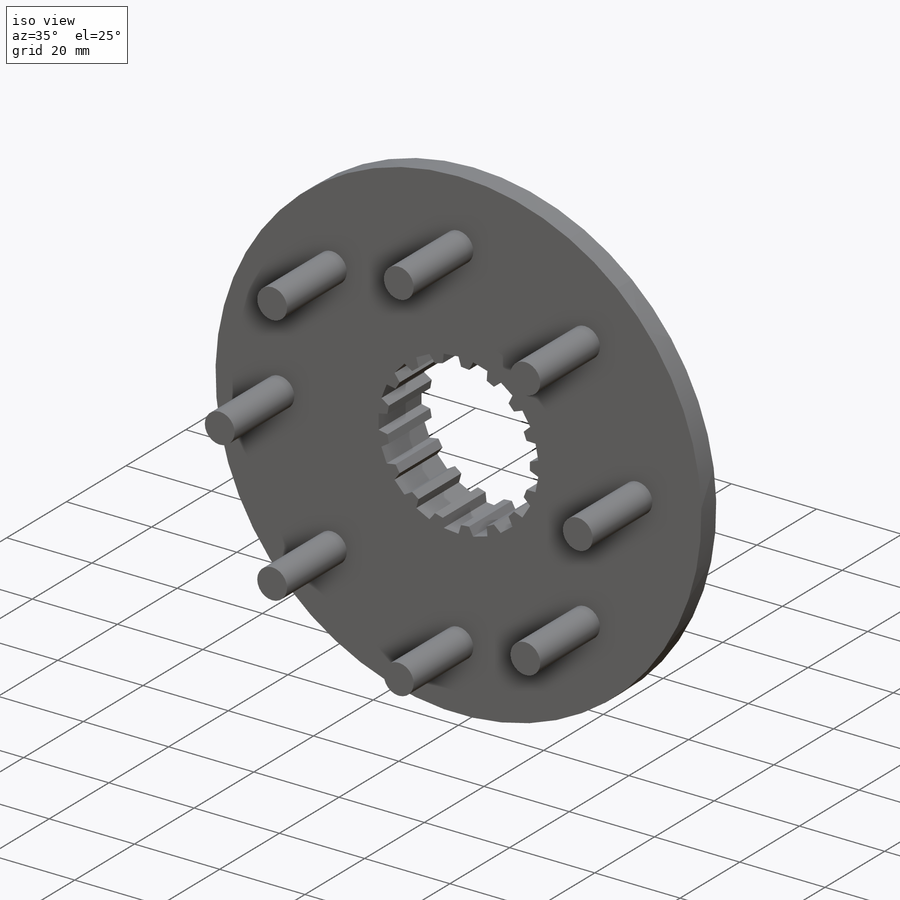
[diagram: iso view]
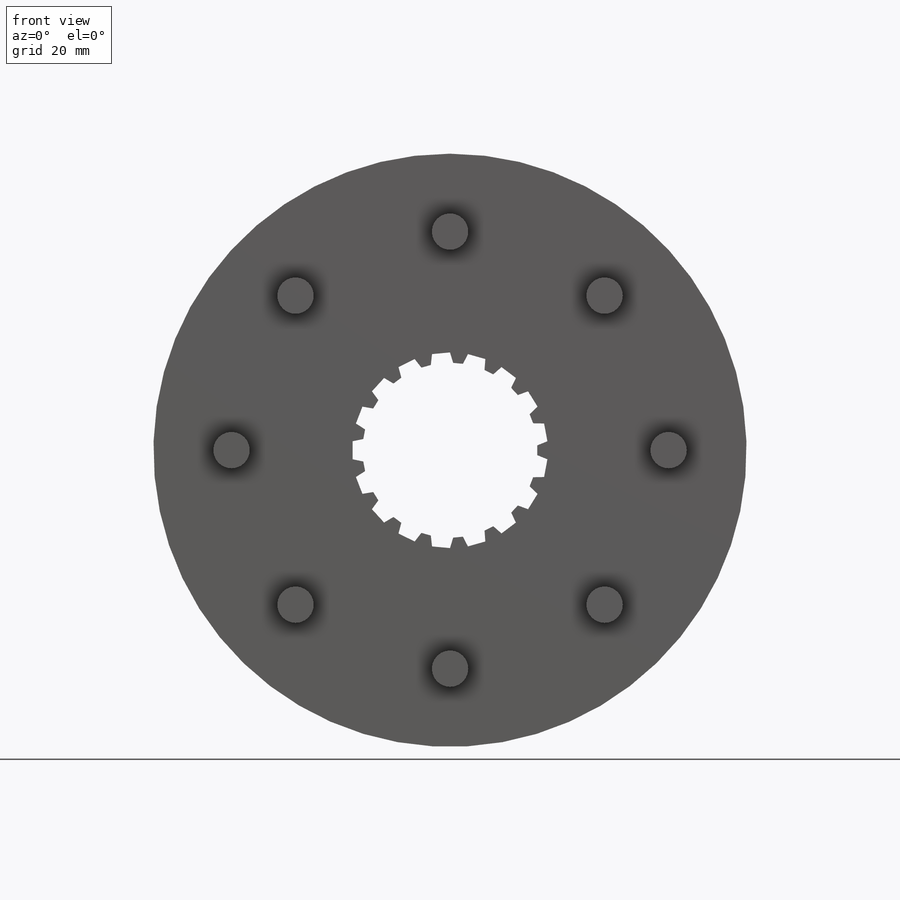
[diagram: front view]
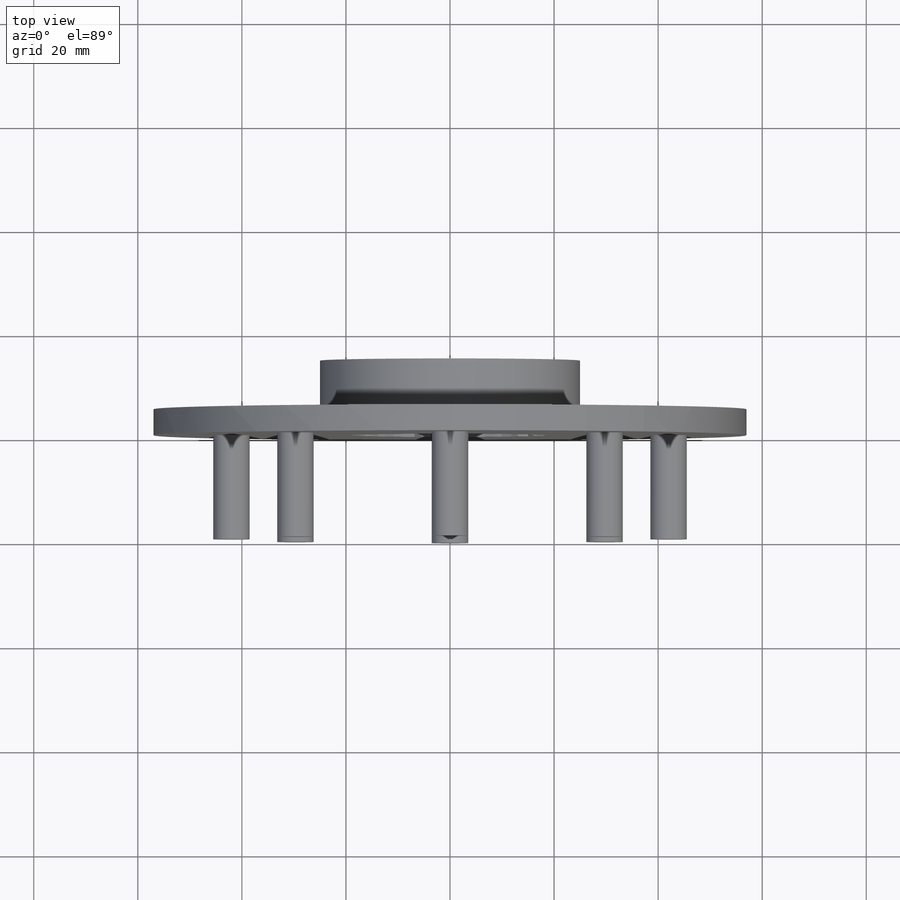
[diagram: top view]
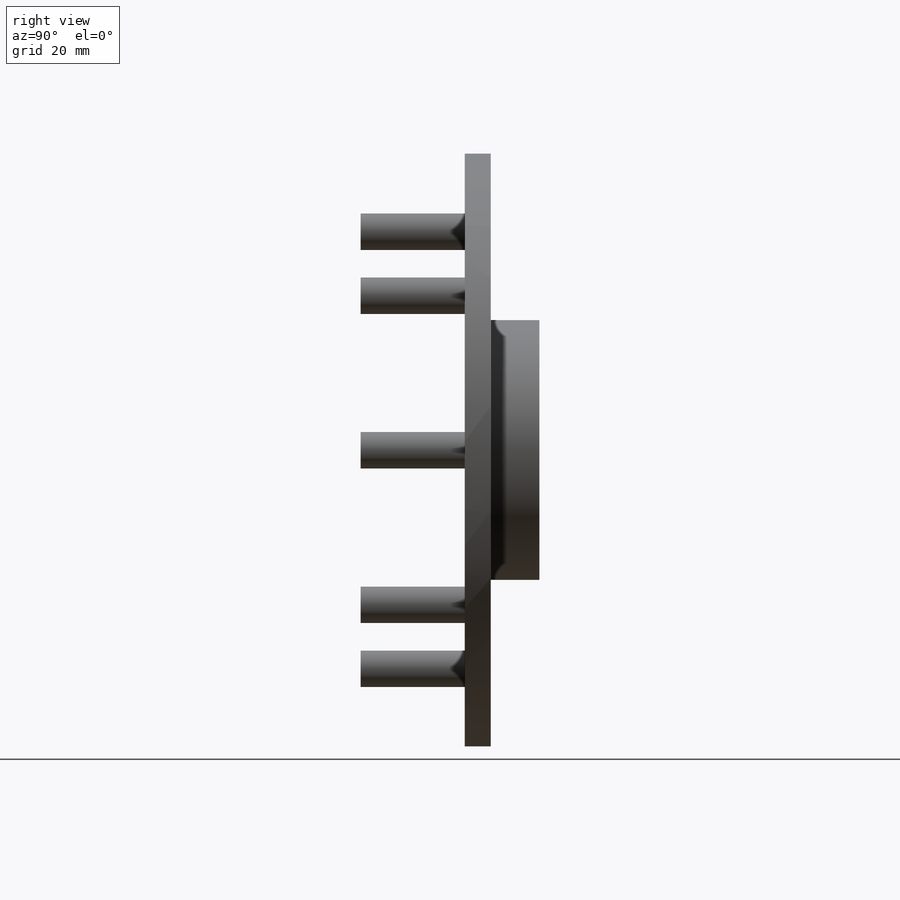
[diagram: right view]
SOLIDWORKS PART (.sldprt)
format: sldprt  version: not decoded by parser v0  size: 248,832 bytes
history: native  units: mm
features: sketch x3, material x1, revolve x1, cut_extrude x1, pattern_circular x1, extrude x1 (+13 scaffold rows collapsed)
feature tree (21):
  scaffold x13  (default folders/planes/origin — collapsed)
  material  "AISI 1045 Steel, cold drawn"
  sketch  "Sketch1"  dims[D1=57.0mm D2=14.35mm D3=5.0mm D4=25.0mm]
  revolve  "Revolve1"  Angle=360deg
  sketch  "Sketch2"  dims[c1.D1=37.6mm c1.D3=18.8mm c1.D5=16.8mm c2.D3=18.8mm c3.D3=~10.588235deg c3.D4=~18.479894mm c4.D4=~10.588235deg c4.D5=~2.195946mm c4.D2=2.0mm]
  cut_extrude  "Cut-Extrude1"  [1 undecoded]
  pattern_circular  "CirPattern1"  Count=17 Angle=360deg
  sketch  "Sketch3"  dims[D1=84.0mm D2=7.0mm D3=8.0]
  extrude  "Boss-Extrude1"  Depth=20mm
decode coverage: 6 of 7 modeling features carry decoded parameters
note: ~ marks probable driven/reference dimensions
note: 1 parameter value undecoded
note: suppression state not decoded; provenance and decode notes live in map.json
